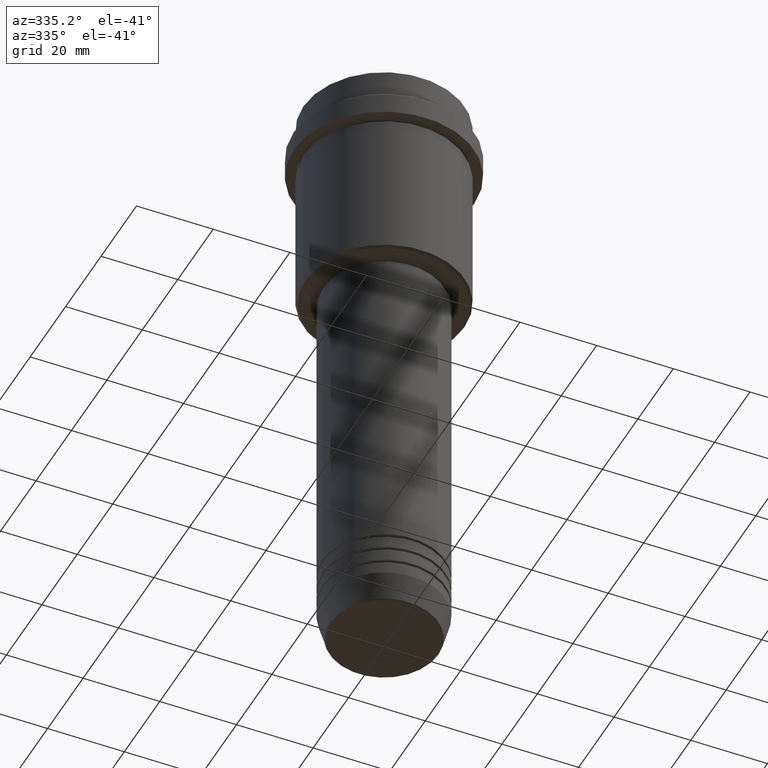
[diagram: clean part render]
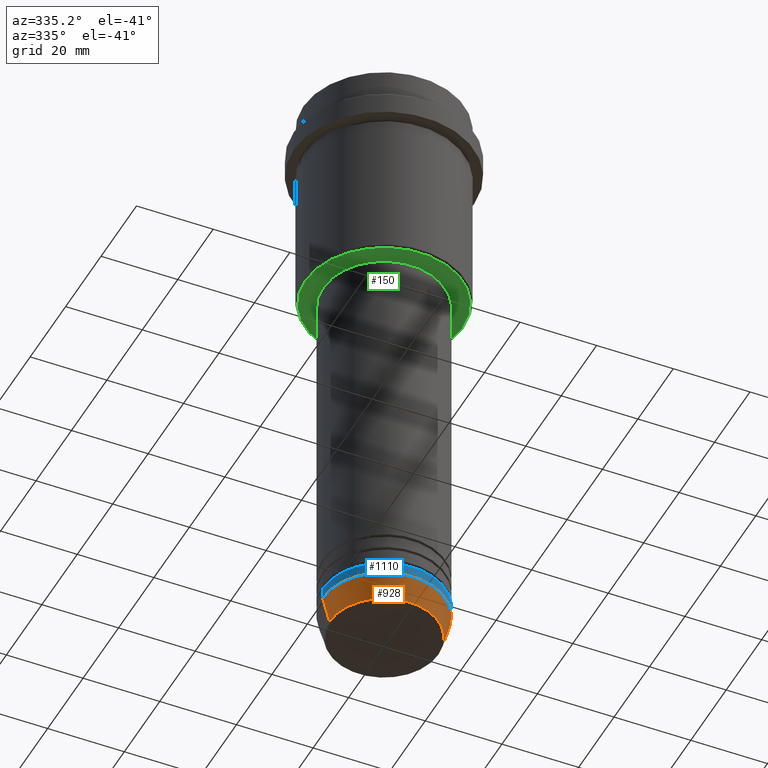
[diagram: same view with three faces highlighted in distinct colors, each labeled with its STEP entity id]
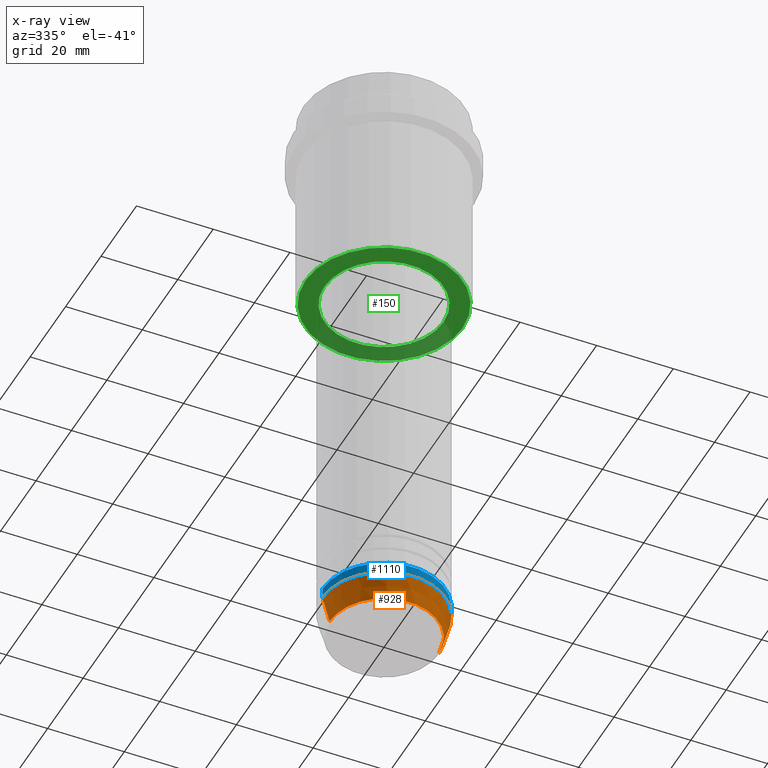
[diagram: x-ray of the same camera — body ghosted, the three highlighted faces saturated]
A machine part, auxiliary view with three faces highlighted in distinct colors.
The next image is the same camera in x-ray (body ghosted, the three faces saturated) — at least one of them is partly hidden behind the body in this view.
Their STEP definitions:

[orange] entity #928 — the highlighted conical surface has half-angle 15 deg.
#6 = DIRECTION ( 'NONE',  ( 1.000000000000000000, 0.000000000000000000, 0.000000000000000000 ) ) ;
#33 = ORIENTED_EDGE ( 'NONE', *, *, #587, .F. ) ;
#116 = EDGE_CURVE ( 'NONE', #663, #806, #380, .T. ) ;
#123 = AXIS2_PLACEMENT_3D ( 'NONE', #232, #141, #435 ) ;
#139 = VERTEX_POINT ( 'NONE', #1101 ) ;
#141 = DIRECTION ( 'NONE',  ( -0.000000000000000000, -0.000000000000000000, 1.000000000000000000 ) ) ;
#154 = AXIS2_PLACEMENT_3D ( 'NONE', #331, #1083, #437 ) ;
#232 = CARTESIAN_POINT ( 'NONE',  ( 0.000000000000000000, 0.000000000000000000, -153.0000000000000000 ) ) ;
#270 = VECTOR ( 'NONE', #626, 1000.000000000000000 ) ;
#278 = ORIENTED_EDGE ( 'NONE', *, *, #680, .T. ) ;
#331 = CARTESIAN_POINT ( 'NONE',  ( 0.000000000000000000, 0.000000000000000000, -153.0000000000000000 ) ) ;
#349 = VERTEX_POINT ( 'NONE', #431 ) ;
#360 = CIRCLE ( 'NONE', #123, 16.00000000000000000 ) ;
#380 = CIRCLE ( 'NONE', #832, 14.22365507213719660 ) ;
#385 = CARTESIAN_POINT ( 'NONE',  ( 14.22365507213719660, 0.000000000000000000, -159.6294095225512422 ) ) ;
#389 = ORIENTED_EDGE ( 'NONE', *, *, #116, .T. ) ;
#431 = CARTESIAN_POINT ( 'NONE',  ( 16.00000000000000000, 0.000000000000000000, -153.0000000000000000 ) ) ;
#435 = DIRECTION ( 'NONE',  ( 1.000000000000000000, 0.000000000000000000, 0.000000000000000000 ) ) ;
#437 = DIRECTION ( 'NONE',  ( 1.000000000000000000, 0.000000000000000000, 0.000000000000000000 ) ) ;
#504 = CARTESIAN_POINT ( 'NONE',  ( -14.22365507213719660, 1.850665122131324126E-15, -159.6294095225512422 ) ) ;
#510 = FACE_OUTER_BOUND ( 'NONE', #1136, .T. ) ;
#543 = DIRECTION ( 'NONE',  ( -0.000000000000000000, -0.000000000000000000, 1.000000000000000000 ) ) ;
#551 = EDGE_CURVE ( 'NONE', #663, #139, #842, .T. ) ;
#587 = EDGE_CURVE ( 'NONE', #139, #349, #360, .T. ) ;
#626 = DIRECTION ( 'NONE',  ( -0.2588190451025213501, 3.169619151431772337E-17, 0.9659258262890680902 ) ) ;
#663 = VERTEX_POINT ( 'NONE', #504 ) ;
#680 = EDGE_CURVE ( 'NONE', #806, #349, #1349, .T. ) ;
#699 = CONICAL_SURFACE ( 'NONE', #154, 16.00000000000000000, 0.2617993877991500740 ) ;
#806 = VERTEX_POINT ( 'NONE', #385 ) ;
#832 = AXIS2_PLACEMENT_3D ( 'NONE', #1316, #543, #6 ) ;
#842 = LINE ( 'NONE', #1277, #270 ) ;
#895 = CARTESIAN_POINT ( 'NONE',  ( 16.00000000000000000, 0.000000000000000000, -153.0000000000000000 ) ) ;
#928 = ADVANCED_FACE ( 'NONE', ( #510 ), #699, .T. ) ;
#985 = VECTOR ( 'NONE', #1018, 1000.000000000000000 ) ;
#1018 = DIRECTION ( 'NONE',  ( 0.2588190451025213501, 0.000000000000000000, 0.9659258262890680902 ) ) ;
#1083 = DIRECTION ( 'NONE',  ( -0.000000000000000000, -0.000000000000000000, 1.000000000000000000 ) ) ;
#1101 = CARTESIAN_POINT ( 'NONE',  ( -16.00000000000000000, 1.959434878635765131E-15, -153.0000000000000000 ) ) ;
#1136 = EDGE_LOOP ( 'NONE', ( #1167, #389, #278, #33 ) ) ;
#1167 = ORIENTED_EDGE ( 'NONE', *, *, #551, .F. ) ;
#1277 = CARTESIAN_POINT ( 'NONE',  ( -16.00000000000000000, 1.959434878635765131E-15, -153.0000000000000000 ) ) ;
#1316 = CARTESIAN_POINT ( 'NONE',  ( 0.000000000000000000, 0.000000000000000000, -159.6294095225512422 ) ) ;
#1349 = LINE ( 'NONE', #895, #985 ) ;

[blue] entity #1110 — the highlighted cylindrical surface (partial cylindrical patch) has radius 16 mm, axis along (-0, -0, 1).
#3 = DIRECTION ( 'NONE',  ( -0.000000000000000000, -0.000000000000000000, 1.000000000000000000 ) ) ;
#123 = AXIS2_PLACEMENT_3D ( 'NONE', #232, #141, #435 ) ;
#128 = DIRECTION ( 'NONE',  ( 1.000000000000000000, 0.000000000000000000, 0.000000000000000000 ) ) ;
#139 = VERTEX_POINT ( 'NONE', #1101 ) ;
#141 = DIRECTION ( 'NONE',  ( -0.000000000000000000, -0.000000000000000000, 1.000000000000000000 ) ) ;
#155 = CIRCLE ( 'NONE', #561, 16.00000000000000000 ) ;
#165 = ORIENTED_EDGE ( 'NONE', *, *, #1367, .T. ) ;
#187 = VERTEX_POINT ( 'NONE', #746 ) ;
#190 = DIRECTION ( 'NONE',  ( -0.000000000000000000, -0.000000000000000000, 1.000000000000000000 ) ) ;
#232 = CARTESIAN_POINT ( 'NONE',  ( 0.000000000000000000, 0.000000000000000000, -153.0000000000000000 ) ) ;
#283 = LINE ( 'NONE', #953, #535 ) ;
#308 = ORIENTED_EDGE ( 'NONE', *, *, #868, .F. ) ;
#319 = AXIS2_PLACEMENT_3D ( 'NONE', #793, #364, #128 ) ;
#349 = VERTEX_POINT ( 'NONE', #431 ) ;
#360 = CIRCLE ( 'NONE', #123, 16.00000000000000000 ) ;
#364 = DIRECTION ( 'NONE',  ( -0.000000000000000000, -0.000000000000000000, 1.000000000000000000 ) ) ;
#417 = ORIENTED_EDGE ( 'NONE', *, *, #587, .T. ) ;
#431 = CARTESIAN_POINT ( 'NONE',  ( 16.00000000000000000, 0.000000000000000000, -153.0000000000000000 ) ) ;
#435 = DIRECTION ( 'NONE',  ( 1.000000000000000000, 0.000000000000000000, 0.000000000000000000 ) ) ;
#535 = VECTOR ( 'NONE', #710, 1000.000000000000000 ) ;
#561 = AXIS2_PLACEMENT_3D ( 'NONE', #1065, #3, #1399 ) ;
#587 = EDGE_CURVE ( 'NONE', #139, #349, #360, .T. ) ;
#674 = VERTEX_POINT ( 'NONE', #1115 ) ;
#688 = FACE_OUTER_BOUND ( 'NONE', #1022, .T. ) ;
#710 = DIRECTION ( 'NONE',  ( -0.000000000000000000, -0.000000000000000000, 1.000000000000000000 ) ) ;
#726 = LINE ( 'NONE', #1158, #1244 ) ;
#746 = CARTESIAN_POINT ( 'NONE',  ( -16.00000000000000000, 1.959434878635765131E-15, -150.0000000000000000 ) ) ;
#793 = CARTESIAN_POINT ( 'NONE',  ( 0.000000000000000000, 0.000000000000000000, 0.000000000000000000 ) ) ;
#868 = EDGE_CURVE ( 'NONE', #139, #187, #283, .T. ) ;
#953 = CARTESIAN_POINT ( 'NONE',  ( -16.00000000000000000, 1.959434878635765131E-15, 0.000000000000000000 ) ) ;
#1022 = EDGE_LOOP ( 'NONE', ( #308, #417, #165, #1028 ) ) ;
#1028 = ORIENTED_EDGE ( 'NONE', *, *, #1043, .F. ) ;
#1043 = EDGE_CURVE ( 'NONE', #187, #674, #155, .T. ) ;
#1065 = CARTESIAN_POINT ( 'NONE',  ( 0.000000000000000000, 0.000000000000000000, -150.0000000000000000 ) ) ;
#1101 = CARTESIAN_POINT ( 'NONE',  ( -16.00000000000000000, 1.959434878635765131E-15, -153.0000000000000000 ) ) ;
#1110 = ADVANCED_FACE ( 'NONE', ( #688 ), #1114, .T. ) ;
#1114 = CYLINDRICAL_SURFACE ( 'NONE', #319, 16.00000000000000000 ) ;
#1115 = CARTESIAN_POINT ( 'NONE',  ( 16.00000000000000000, 0.000000000000000000, -150.0000000000000000 ) ) ;
#1158 = CARTESIAN_POINT ( 'NONE',  ( 16.00000000000000000, 0.000000000000000000, 0.000000000000000000 ) ) ;
#1244 = VECTOR ( 'NONE', #190, 1000.000000000000000 ) ;
#1367 = EDGE_CURVE ( 'NONE', #349, #674, #726, .T. ) ;
#1399 = DIRECTION ( 'NONE',  ( 1.000000000000000000, 0.000000000000000000, 0.000000000000000000 ) ) ;

[green] entity #150 — the highlighted planar face has unit normal (0, 0, -1).
#77 = DIRECTION ( 'NONE',  ( -1.000000000000000000, 0.000000000000000000, -0.000000000000000000 ) ) ;
#89 = DIRECTION ( 'NONE',  ( 0.000000000000000000, 0.000000000000000000, -1.000000000000000000 ) ) ;
#133 = VERTEX_POINT ( 'NONE', #438 ) ;
#150 = ADVANCED_FACE ( 'NONE', ( #1337, #796 ), #255, .T. ) ;
#174 = DIRECTION ( 'NONE',  ( -0.000000000000000000, -0.000000000000000000, 1.000000000000000000 ) ) ;
#216 = EDGE_CURVE ( 'NONE', #784, #133, #1007, .T. ) ;
#219 = VERTEX_POINT ( 'NONE', #1314 ) ;
#224 = CARTESIAN_POINT ( 'NONE',  ( 0.000000000000000000, 0.000000000000000000, -54.99999999999999289 ) ) ;
#225 = DIRECTION ( 'NONE',  ( 0.000000000000000000, 0.000000000000000000, -1.000000000000000000 ) ) ;
#255 = PLANE ( 'NONE',  #668 ) ;
#312 = ORIENTED_EDGE ( 'NONE', *, *, #942, .T. ) ;
#330 = DIRECTION ( 'NONE',  ( -0.000000000000000000, -0.000000000000000000, 1.000000000000000000 ) ) ;
#365 = ORIENTED_EDGE ( 'NONE', *, *, #216, .T. ) ;
#438 = CARTESIAN_POINT ( 'NONE',  ( 15.49999999999999645, 0.000000000000000000, -54.99999999999999289 ) ) ;
#443 = AXIS2_PLACEMENT_3D ( 'NONE', #224, #330, #1408 ) ;
#532 = CARTESIAN_POINT ( 'NONE',  ( 0.000000000000000000, 0.000000000000000000, -54.99999999999999289 ) ) ;
#537 = DIRECTION ( 'NONE',  ( -1.000000000000000000, 0.000000000000000000, 0.000000000000000000 ) ) ;
#595 = CARTESIAN_POINT ( 'NONE',  ( -20.50000000000003197, 2.541142108230759846E-15, -54.99999999999999289 ) ) ;
#616 = CARTESIAN_POINT ( 'NONE',  ( 0.000000000000000000, 0.000000000000000000, -54.99999999999999289 ) ) ;
#617 = VERTEX_POINT ( 'NONE', #595 ) ;
#630 = DIRECTION ( 'NONE',  ( 0.000000000000000000, 0.000000000000000000, -1.000000000000000000 ) ) ;
#668 = AXIS2_PLACEMENT_3D ( 'NONE', #727, #630, #77 ) ;
#669 = CARTESIAN_POINT ( 'NONE',  ( -15.49999999999999645, 1.898202538678397163E-15, -54.99999999999999289 ) ) ;
#679 = AXIS2_PLACEMENT_3D ( 'NONE', #616, #174, #1029 ) ;
#727 = CARTESIAN_POINT ( 'NONE',  ( 0.000000000000000000, 21.00000000000000000, -54.99999999999999289 ) ) ;
#756 = AXIS2_PLACEMENT_3D ( 'NONE', #1298, #89, #866 ) ;
#784 = VERTEX_POINT ( 'NONE', #669 ) ;
#790 = AXIS2_PLACEMENT_3D ( 'NONE', #532, #225, #537 ) ;
#796 = FACE_BOUND ( 'NONE', #1128, .T. ) ;
#866 = DIRECTION ( 'NONE',  ( -1.000000000000000000, 0.000000000000000000, 0.000000000000000000 ) ) ;
#880 = CIRCLE ( 'NONE', #756, 20.50000000000003197 ) ;
#942 = EDGE_CURVE ( 'NONE', #617, #219, #880, .T. ) ;
#959 = EDGE_CURVE ( 'NONE', #219, #617, #1125, .T. ) ;
#1007 = CIRCLE ( 'NONE', #443, 15.49999999999999645 ) ;
#1029 = DIRECTION ( 'NONE',  ( 1.000000000000000000, 0.000000000000000000, 0.000000000000000000 ) ) ;
#1037 = CIRCLE ( 'NONE', #679, 15.49999999999999645 ) ;
#1125 = CIRCLE ( 'NONE', #790, 20.50000000000003197 ) ;
#1128 = EDGE_LOOP ( 'NONE', ( #1206, #365 ) ) ;
#1206 = ORIENTED_EDGE ( 'NONE', *, *, #1312, .T. ) ;
#1276 = ORIENTED_EDGE ( 'NONE', *, *, #959, .T. ) ;
#1298 = CARTESIAN_POINT ( 'NONE',  ( 0.000000000000000000, 0.000000000000000000, -54.99999999999999289 ) ) ;
#1312 = EDGE_CURVE ( 'NONE', #133, #784, #1037, .T. ) ;
#1314 = CARTESIAN_POINT ( 'NONE',  ( 20.50000000000003197, 0.000000000000000000, -54.99999999999999289 ) ) ;
#1337 = FACE_OUTER_BOUND ( 'NONE', #1352, .T. ) ;
#1352 = EDGE_LOOP ( 'NONE', ( #1276, #312 ) ) ;
#1408 = DIRECTION ( 'NONE',  ( 1.000000000000000000, 0.000000000000000000, 0.000000000000000000 ) ) ;